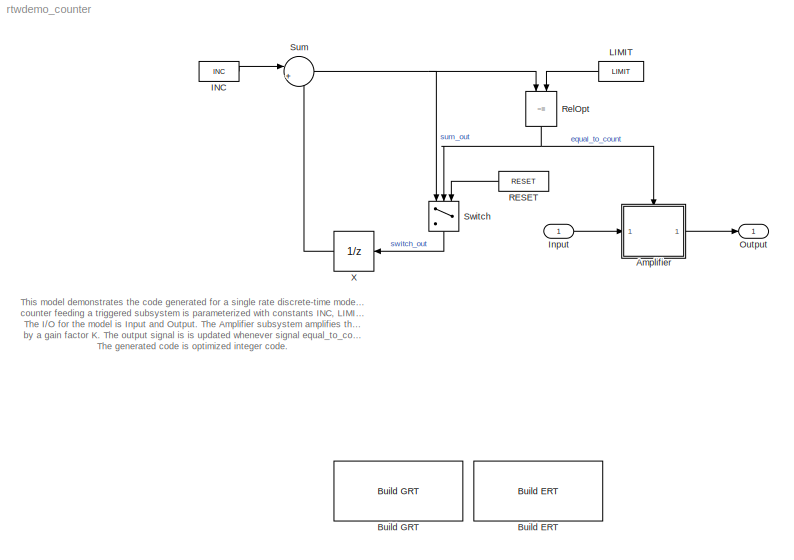
MODEL rtwdemo_counter
KIND model
CONFIG PostLoadFcn = INC=uint8(1);LIMIT=uint8(16);RESET=uint8(0);K=int32(2);
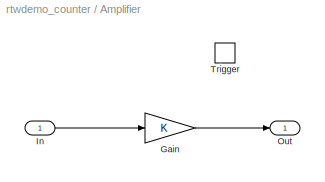
BLOCK [SubSystem] Amplifier
  MinAlgLoopOccurrences = off
  Ports = [1, 1, 0, 1]
  PropExecContextAcrossSSBoundary = on
  RTWSystemCode = Auto
  TreatAsAtomicUnit = on
BLOCK [Gain] Amplifier/Gain
  Gain = K
  SaturateOnIntegerOverflow = off
BLOCK [Inport] Amplifier/In
  IconDisplay = Port number
  LatchInput = off
  Port = 1
BLOCK [Outport] Amplifier/Out
  BusOutputAsStruct = off
  IconDisplay = Port number
  InitialOutput = 0
BLOCK [TriggerPort] Amplifier/Trigger
  Ports = []
BLOCK [Reference] Build ERT  REF=rtwdemowidgets/Build ERT
  Ports = []
  ShowPortLabels = on
  SourceBlock = rtwdemowidgets/Build ERT
  attrib_overrides = {}
BLOCK [Reference] Build GRT  REF=rtwdemowidgets/Build GRT
  Ports = []
  ShowPortLabels = on
  SourceBlock = rtwdemowidgets/Build GRT
  attrib_overrides = {}
BLOCK [Constant] INC
  Value = INC
BLOCK [Inport] Input
  DataType = int32
  IconDisplay = Port number
  LatchInput = off
  Port = 1
BLOCK [Constant] LIMIT
  Value = LIMIT
BLOCK [Outport] Output
  BusOutputAsStruct = off
  IconDisplay = Port number
BLOCK [Constant] RESET
  Value = RESET
BLOCK [RelationalOperator] RelOpt
  Operator = ~=
BLOCK [Sum] Sum
  IconShape = round
  Inputs = |++
  Ports = [2, 1]
  SaturateOnIntegerOverflow = off
BLOCK [Switch] Switch
  Threshold = .5
BLOCK [UnitDelay] X
  StateIdentifier = X
ANNOTATION (root): This model demonstrates the code generated for a single rate discrete-time model. An 8-bit\ncounter feeding a triggered subsystem is parameterized with constants INC, LIMIT and RESET.\nThe I/O for the model is Input and Output. The Amplifier subsystem amplifies the input signal\nby a gain factor K. The output signal is is updated whenever signal equal_to_count is true.\nThe generated code is optim...<+162ch>
LINE Amplifier/Gain:1 -> Amplifier/Out:1
LINE Amplifier/In:1 -> Amplifier/Gain:1
LINE Amplifier:1 -> Output:1
LINE INC:1 -> Sum:1
LINE Input:1 -> Amplifier:1
LINE LIMIT:1 -> RelOpt:2
LINE RESET:1 -> Switch:3
NET RelOpt:1 -> Amplifier:trigger, Switch:2
NET Sum:1 -> RelOpt:1, Switch:1
LINE Switch:1 -> X:1
LINE X:1 -> Sum:2
note: NET lines group one-source signal fan-out (src -> all destinations, sorted); 1:1 wires keep LINE
